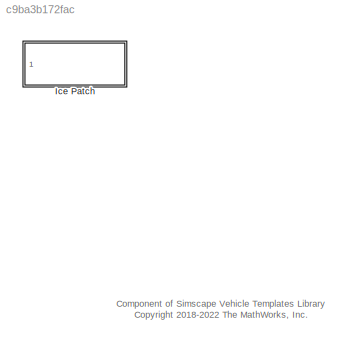
MODEL slx_c9ba3b172fac
KIND library
CONFIG AbsTol = auto
CONFIG EnableMultiTasking = off
CONFIG FixedStep = auto
CONFIG MaxStep = auto
CONFIG MinStep = auto
CONFIG RelTol = 1e-3
CONFIG SampleTimeConstraint = Unconstrained
CONFIG SolverName = VariableStepAuto
CONFIG StartTime = 0.0
CONFIG StopTime = 10.0
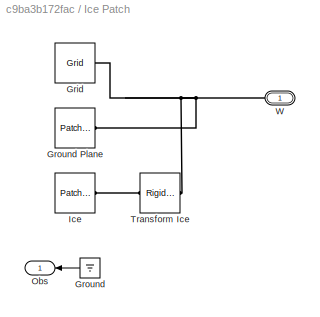
BLOCK [SubSystem] Ice Patch
  Ports = [0, 1, 0, 0, 0, 1]
  RequestExecContextInheritance = off
BLOCK [Reference] Ice Patch/Grid  REF=sm_car_lib/Environment/Grid  (lib defined in slx_05426f0848b6, slx_5dc2867fb1c9)
  Ports = [0, 0, 0, 0, 0, 1]
  SourceBlock = sm_car_lib/Environment/Grid
BLOCK [Ground] Ice Patch/Ground
  NameLocation = top
BLOCK [Reference] Ice Patch/Ground Plane  REF=sm_car_lib/Environment/Patch Rectangle  (lib defined in slx_05426f0848b6, slx_5dc2867fb1c9)
  Ports = [0, 0, 0, 0, 0, 0, 1]
  SourceBlock = sm_car_lib/Environment/Patch Rectangle
BLOCK [Reference] Ice Patch/Ice  REF=sm_car_lib/Environment/Patch Rectangle  (lib defined in slx_05426f0848b6, slx_5dc2867fb1c9)
  Ports = [0, 0, 0, 0, 0, 0, 1]
  SourceBlock = sm_car_lib/Environment/Patch Rectangle
BLOCK [Outport] Ice Patch/Obs
  VectorParamsAs1DForOutWhenUnconnected = off
BLOCK [Reference] Ice Patch/Transform Ice  REF=sm_lib/Frames and
Transforms/Rigid
Transform
  Ports = [0, 0, 0, 0, 0, 1, 1]
  SourceBlock = sm_lib/Frames and\nTransforms/Rigid\nTransform
  SourceProductBaseCode = MS
  SourceType = Rigid\nTransform
BLOCK [PMIOPort] Ice Patch/W
  NameLocation = top
  Side = Left
ANNOTATION (root): Component of Simscape Vehicle Templates Library <copyright redacted>
LINE Ice Patch/Ground:1 -> Ice Patch/Obs:1
PNET net1: Ice Patch/Grid:LConn1 -- Ice Patch/Ground Plane:RConn1 -- Ice Patch/Transform Ice:LConn1 -- Ice Patch/W:RConn1
PLINE Ice Patch/Ice:RConn1 -- Ice Patch/Transform Ice:RConn1
note: PNET lines group multi-terminal physical nets as a canonical sorted terminal list (undirected conserving connections); 2-terminal nets keep the pairwise PLINE form
